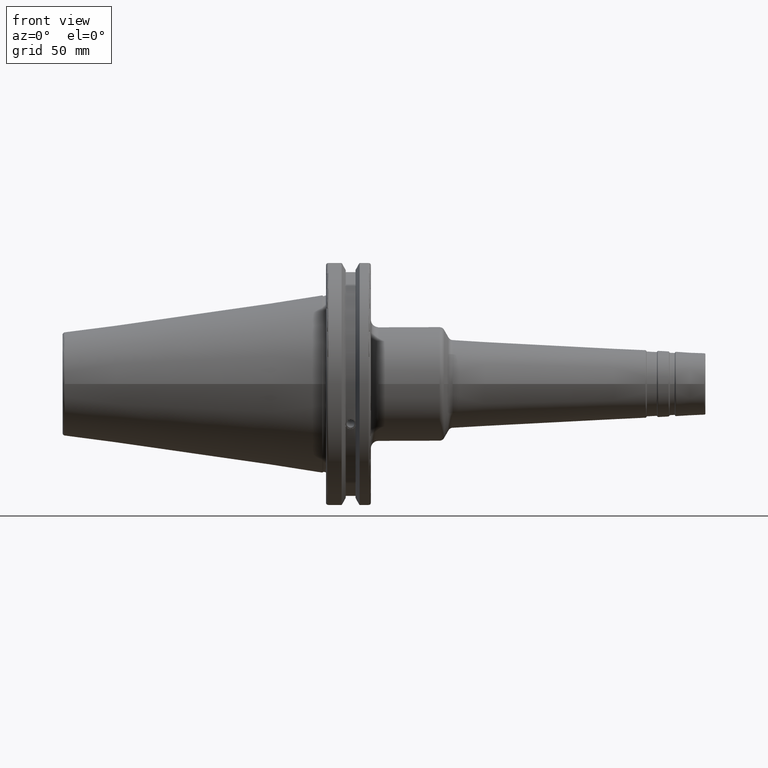
[diagram: clean part render]
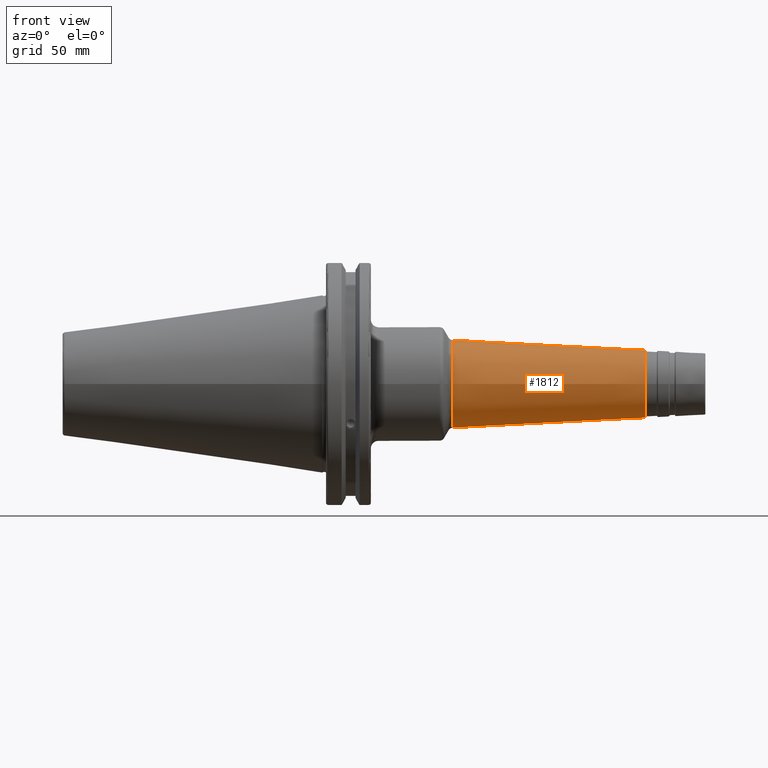
[diagram: same view with one face highlighted and labeled with its STEP entity id]
A machine part, front view. The second image highlights one B-rep face of the part: STEP entity #1812.
In plain terms, the highlighted conical surface has half-angle 3 deg.
Its self-contained STEP definition (entity closure, byte-faithful):
#81=CONICAL_SURFACE('',#1984,15.2295517409819,0.0523598775598297);
#188=FACE_OUTER_BOUND('',#294,.T.);
#294=EDGE_LOOP('',(#1304,#1305,#1306,#1307,#1308,#1309));
#406=LINE('',#2902,#507);
#507=VECTOR('',#2289,15.2295517409819);
#642=CIRCLE('',#1982,13.2304120250298);
#643=CIRCLE('',#1983,13.2304120250298);
#644=CIRCLE('',#1985,17.1839457168278);
#645=CIRCLE('',#1986,17.1839457168278);
#762=VERTEX_POINT('',#2895);
#763=VERTEX_POINT('',#2897);
#764=VERTEX_POINT('',#2901);
#765=VERTEX_POINT('',#2903);
#970=EDGE_CURVE('',#762,#763,#642,.T.);
#971=EDGE_CURVE('',#763,#762,#643,.T.);
#972=EDGE_CURVE('',#763,#764,#406,.T.);
#973=EDGE_CURVE('',#765,#764,#644,.T.);
#974=EDGE_CURVE('',#764,#765,#645,.T.);
#1304=ORIENTED_EDGE('',*,*,#971,.F.);
#1305=ORIENTED_EDGE('',*,*,#972,.T.);
#1306=ORIENTED_EDGE('',*,*,#973,.F.);
#1307=ORIENTED_EDGE('',*,*,#974,.F.);
#1308=ORIENTED_EDGE('',*,*,#972,.F.);
#1309=ORIENTED_EDGE('',*,*,#970,.F.);
#1812=ADVANCED_FACE('',(#188),#81,.T.);
#1982=AXIS2_PLACEMENT_3D('',#2898,#2283,#2284);
#1983=AXIS2_PLACEMENT_3D('',#2899,#2285,#2286);
#1984=AXIS2_PLACEMENT_3D('',#2900,#2287,#2288);
#1985=AXIS2_PLACEMENT_3D('',#2904,#2290,#2291);
#1986=AXIS2_PLACEMENT_3D('',#2905,#2292,#2293);
#2283=DIRECTION('center_axis',(1.,0.,0.));
#2284=DIRECTION('ref_axis',(0.,-1.,3.06161699786838E-17));
#2285=DIRECTION('center_axis',(1.,0.,0.));
#2286=DIRECTION('ref_axis',(0.,-1.,3.06161699786838E-17));
#2287=DIRECTION('center_axis',(-1.,0.,0.));
#2288=DIRECTION('ref_axis',(0.,1.,0.));
#2289=DIRECTION('',(-0.998629534754574,-0.0523359562429437,-6.40930612932369E-18));
#2290=DIRECTION('center_axis',(-1.,0.,0.));
#2291=DIRECTION('ref_axis',(0.,-1.,3.06161699786838E-17));
#2292=DIRECTION('center_axis',(-1.,0.,0.));
#2293=DIRECTION('ref_axis',(0.,-1.,3.06161699786838E-17));
#2895=CARTESIAN_POINT('',(126.522339968181,-1.62025817378534E-15,13.2304120250298));
#2897=CARTESIAN_POINT('',(126.522339968181,-13.2304120250298,-1.62025817378534E-15));
#2898=CARTESIAN_POINT('Origin',(126.522339968181,0.,-2.02532271723168E-15));
#2899=CARTESIAN_POINT('Origin',(126.522339968181,0.,-2.02532271723168E-15));
#2900=CARTESIAN_POINT('Origin',(88.3764817902328,0.,0.));
#2901=CARTESIAN_POINT('',(51.0844231954446,-17.1839457168278,-2.10442641188351E-15));
#2902=CARTESIAN_POINT('',(88.3764817902328,-15.2295517409819,-1.86508217920425E-15));
#2903=CARTESIAN_POINT('',(51.0844231954446,-2.10442641188351E-15,17.1839457168278));
#2904=CARTESIAN_POINT('Origin',(51.0844231954446,0.,-2.63053301485438E-15));
#2905=CARTESIAN_POINT('Origin',(51.0844231954446,0.,-2.63053301485438E-15));